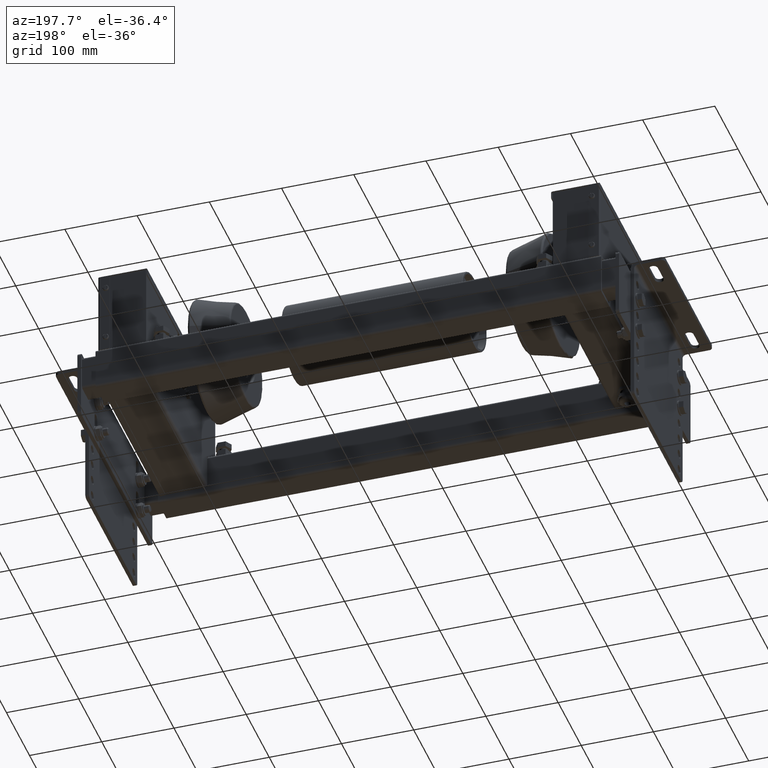
[diagram: clean part render]
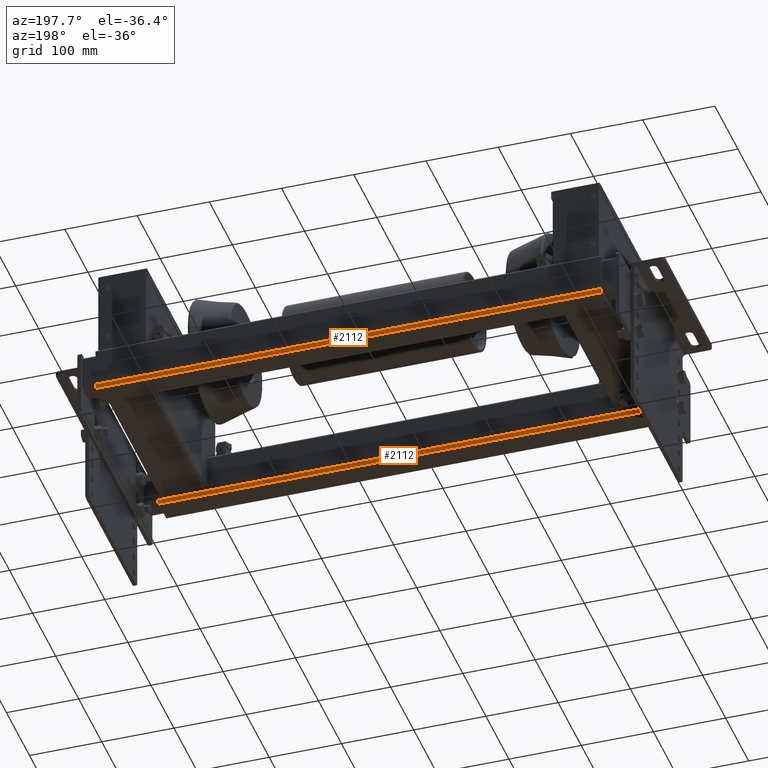
[diagram: same view with one multi-face feature highlighted, each face labeled with its STEP entity id]
A machine part, auxiliary view. The highlighted faces form ONE feature: a constant-radius fillet chain: 2 tangent blend faces with common blend radius 4 mm. The faces share edges in the B-rep.
Their STEP definitions:
[1] entity #2112 (Cylinder):
#2054=CARTESIAN_POINT('',(20.0,-25.999999999999886,295.0));
#2055=VERTEX_POINT('',#2054);
#2062=CARTESIAN_POINT('',(20.0,-25.999999999999886,-405.0));
#2063=VERTEX_POINT('',#2062);
#2064=CARTESIAN_POINT('',(20.0,-25.999999999999886,-405.0));
#2065=DIRECTION('',(0.0,0.0,1.0));
#2066=VECTOR('',#2065,700.0);
#2067=LINE('',#2064,#2066);
#2068=EDGE_CURVE('',#2063,#2055,#2067,.T.);
#2080=CARTESIAN_POINT('',(16.0,-25.999999999999886,-405.0));
#2081=DIRECTION('',(0.0,0.0,1.0));
#2082=DIRECTION('',(1.0,0.0,0.0));
#2083=AXIS2_PLACEMENT_3D('',#2080,#2081,#2082);
#2084=CYLINDRICAL_SURFACE('',#2083,4.0);
#2085=CARTESIAN_POINT('',(16.0,-29.999999999999886,295.0));
#2086=VERTEX_POINT('',#2085);
#2087=CARTESIAN_POINT('',(16.0,-25.999999999999886,295.0));
#2088=DIRECTION('',(0.0,0.0,-1.0));
#2089=DIRECTION('',(1.0,0.0,0.0));
#2090=AXIS2_PLACEMENT_3D('',#2087,#2088,#2089);
#2091=CIRCLE('',#2090,4.0);
#2092=EDGE_CURVE('',#2055,#2086,#2091,.T.);
#2093=ORIENTED_EDGE('',*,*,#2092,.T.);
#2094=CARTESIAN_POINT('',(16.0,-29.999999999999886,-405.0));
#2095=VERTEX_POINT('',#2094);
#2096=CARTESIAN_POINT('',(16.0,-29.999999999999886,-405.0));
#2097=DIRECTION('',(0.0,0.0,1.0));
#2098=VECTOR('',#2097,700.0);
#2099=LINE('',#2096,#2098);
#2100=EDGE_CURVE('',#2095,#2086,#2099,.T.);
#2101=ORIENTED_EDGE('',*,*,#2100,.F.);
#2102=CARTESIAN_POINT('',(16.0,-25.999999999999886,-405.0));
#2103=DIRECTION('',(0.0,0.0,-1.0));
#2104=DIRECTION('',(1.0,0.0,0.0));
#2105=AXIS2_PLACEMENT_3D('',#2102,#2103,#2104);
#2106=CIRCLE('',#2105,4.0);
#2107=EDGE_CURVE('',#2063,#2095,#2106,.T.);
#2108=ORIENTED_EDGE('',*,*,#2107,.F.);
#2109=ORIENTED_EDGE('',*,*,#2068,.T.);
#2110=EDGE_LOOP('',(#2093,#2101,#2108,#2109));
#2111=FACE_OUTER_BOUND('',#2110,.T.);
#2112=ADVANCED_FACE('',(#2111),#2084,.T.);
[2] entity #2112 (Cylinder):
#2054=CARTESIAN_POINT('',(20.0,-25.999999999999886,295.0));
#2055=VERTEX_POINT('',#2054);
#2062=CARTESIAN_POINT('',(20.0,-25.999999999999886,-405.0));
#2063=VERTEX_POINT('',#2062);
#2064=CARTESIAN_POINT('',(20.0,-25.999999999999886,-405.0));
#2065=DIRECTION('',(0.0,0.0,1.0));
#2066=VECTOR('',#2065,700.0);
#2067=LINE('',#2064,#2066);
#2068=EDGE_CURVE('',#2063,#2055,#2067,.T.);
#2080=CARTESIAN_POINT('',(16.0,-25.999999999999886,-405.0));
#2081=DIRECTION('',(0.0,0.0,1.0));
#2082=DIRECTION('',(1.0,0.0,0.0));
#2083=AXIS2_PLACEMENT_3D('',#2080,#2081,#2082);
#2084=CYLINDRICAL_SURFACE('',#2083,4.0);
#2085=CARTESIAN_POINT('',(16.0,-29.999999999999886,295.0));
#2086=VERTEX_POINT('',#2085);
#2087=CARTESIAN_POINT('',(16.0,-25.999999999999886,295.0));
#2088=DIRECTION('',(0.0,0.0,-1.0));
#2089=DIRECTION('',(1.0,0.0,0.0));
#2090=AXIS2_PLACEMENT_3D('',#2087,#2088,#2089);
#2091=CIRCLE('',#2090,4.0);
#2092=EDGE_CURVE('',#2055,#2086,#2091,.T.);
#2093=ORIENTED_EDGE('',*,*,#2092,.T.);
#2094=CARTESIAN_POINT('',(16.0,-29.999999999999886,-405.0));
#2095=VERTEX_POINT('',#2094);
#2096=CARTESIAN_POINT('',(16.0,-29.999999999999886,-405.0));
#2097=DIRECTION('',(0.0,0.0,1.0));
#2098=VECTOR('',#2097,700.0);
#2099=LINE('',#2096,#2098);
#2100=EDGE_CURVE('',#2095,#2086,#2099,.T.);
#2101=ORIENTED_EDGE('',*,*,#2100,.F.);
#2102=CARTESIAN_POINT('',(16.0,-25.999999999999886,-405.0));
#2103=DIRECTION('',(0.0,0.0,-1.0));
#2104=DIRECTION('',(1.0,0.0,0.0));
#2105=AXIS2_PLACEMENT_3D('',#2102,#2103,#2104);
#2106=CIRCLE('',#2105,4.0);
#2107=EDGE_CURVE('',#2063,#2095,#2106,.T.);
#2108=ORIENTED_EDGE('',*,*,#2107,.F.);
#2109=ORIENTED_EDGE('',*,*,#2068,.T.);
#2110=EDGE_LOOP('',(#2093,#2101,#2108,#2109));
#2111=FACE_OUTER_BOUND('',#2110,.T.);
#2112=ADVANCED_FACE('',(#2111),#2084,.T.);